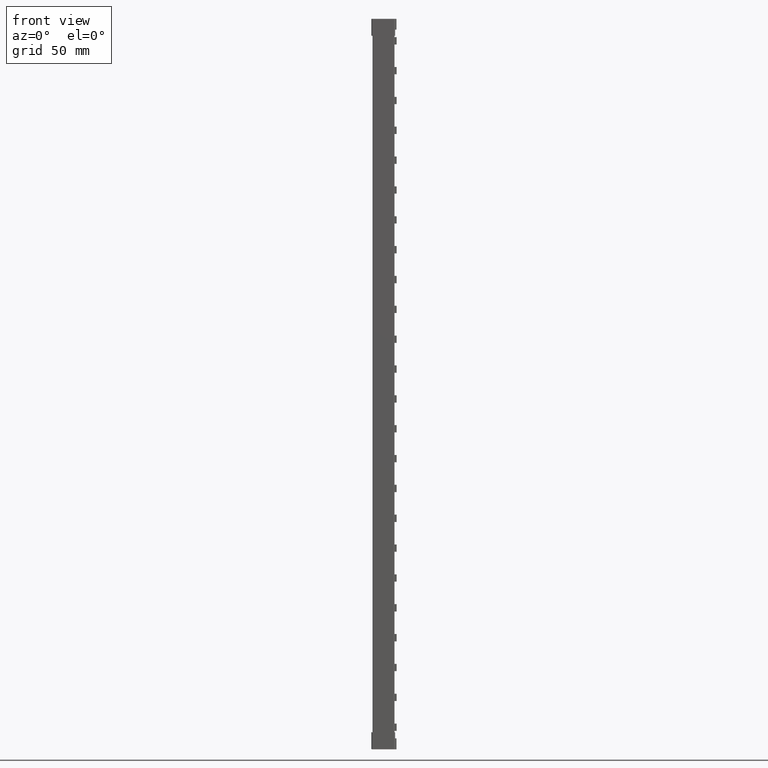
[diagram: clean part render]
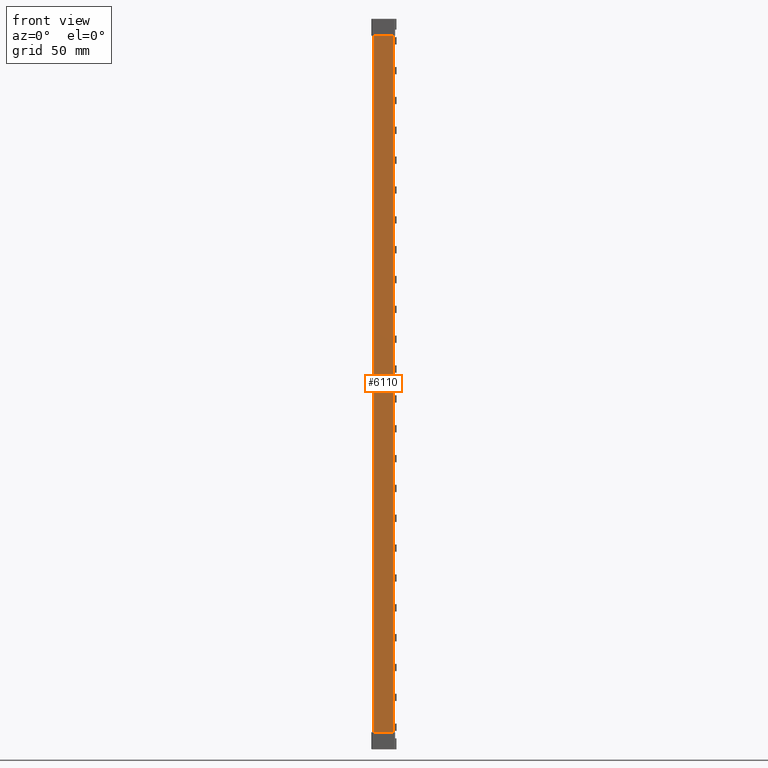
[diagram: same view with one face highlighted and labeled with its STEP entity id]
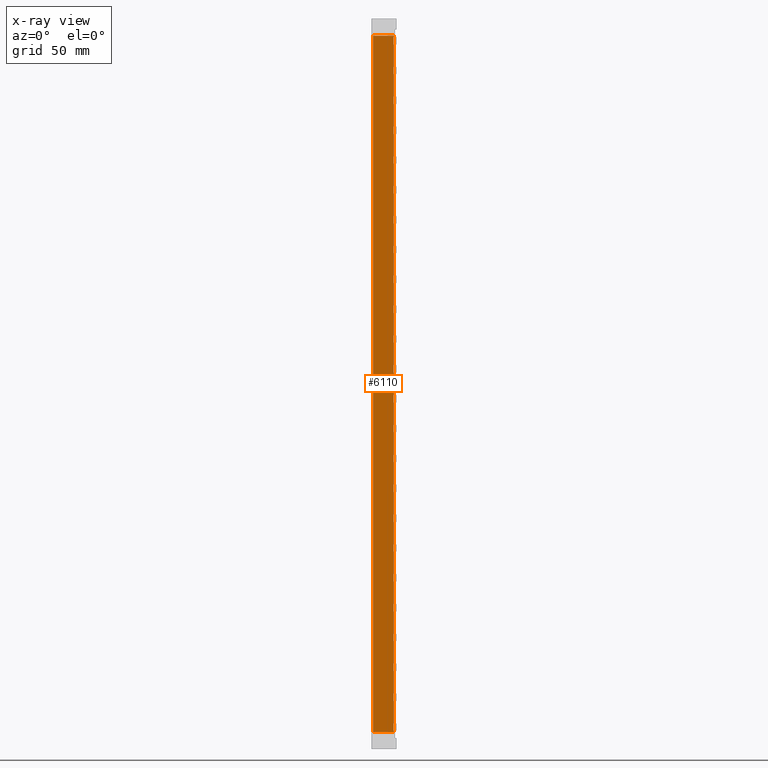
[diagram: x-ray of the same camera — body ghosted, the highlighted face saturated]
A machine part, front view. The second image highlights one B-rep face of the part: STEP entity #6110.
The next image is the same camera in x-ray: the body ghosted, the highlighted face saturated — about 0% of this face is hidden behind the body in this view.
In plain terms, the highlighted planar face has unit normal (-0, 1, 0).
Its self-contained STEP definition (entity closure, byte-faithful):
#2745 = ORIENTED_EDGE ( 'NONE', *, *, #19059, .T. ) ;
#2784 = ORIENTED_EDGE ( 'NONE', *, *, #19070, .F. ) ;
#2809 = ORIENTED_EDGE ( 'NONE', *, *, #19067, .T. ) ;
#2812 = ORIENTED_EDGE ( 'NONE', *, *, #26530, .F. ) ;
#3293 = EDGE_LOOP ( 'NONE', ( #2812, #2809, #2745, #2784 ) ) ;
#3785 = AXIS2_PLACEMENT_3D ( 'NONE', #27610, #27608, #27628 ) ;
#6110 = ADVANCED_FACE ( 'NONE', ( #27594 ), #27615, .F. ) ;
#8633 = LINE ( 'NONE', #8802, #9920 ) ;
#8720 = CARTESIAN_POINT ( 'NONE',  ( -9.184850993604136500E-017, 5.551115123125782700E-014, 219.0000000000000000 ) ) ;
#8722 = DIRECTION ( 'NONE',  ( -0.0000000000000000000, -0.0000000000000000000, -1.000000000000000000 ) ) ;
#8757 = CARTESIAN_POINT ( 'NONE',  ( 11.80192812978781800, 1.341396419667680700E-007, 219.0000000000000000 ) ) ;
#8760 = DIRECTION ( 'NONE',  ( -0.0000000000000000000, -0.0000000000000000000, -1.000000000000000000 ) ) ;
#8765 = LINE ( 'NONE', #8757, #9907 ) ;
#8776 = DIRECTION ( 'NONE',  ( 0.9999999999999998900, 1.136590449795155200E-008, 3.864550688587075800E-026 ) ) ;
#8802 = CARTESIAN_POINT ( 'NONE',  ( -0.4999997060800690000, -5.682891657254884900E-009, -200.9000000000000100 ) ) ;
#8816 = LINE ( 'NONE', #8720, #10888 ) ;
#9423 = CARTESIAN_POINT ( 'NONE',  ( 11.80192812978781800, 1.341396452464796400E-007, -200.9000000000000100 ) ) ;
#9554 = CARTESIAN_POINT ( 'NONE',  ( 0.0000000000000000000, 5.725105502598715000E-014, -200.9000000000000100 ) ) ;
#9907 = VECTOR ( 'NONE', #8760, 1000.000000000000000 ) ;
#9920 = VECTOR ( 'NONE', #8776, 1000.000000000000100 ) ;
#10381 = CARTESIAN_POINT ( 'NONE',  ( 0.0000000000000000000, 5.725105502598715000E-014, 209.9000000000000100 ) ) ;
#10888 = VECTOR ( 'NONE', #8722, 1000.000000000000000 ) ;
#12747 = CARTESIAN_POINT ( 'NONE',  ( 11.80192812978781800, 1.341396452464796400E-007, 209.9000000000000100 ) ) ;
#19059 = EDGE_CURVE ( 'NONE', #35897, #35845, #8633, .T. ) ;
#19067 = EDGE_CURVE ( 'NONE', #35110, #35897, #8816, .T. ) ;
#19070 = EDGE_CURVE ( 'NONE', #35244, #35845, #8765, .T. ) ;
#25695 = CARTESIAN_POINT ( 'NONE',  ( -0.4999997060800690000, -5.682893331100043300E-009, 209.9000000000000100 ) ) ;
#25725 = LINE ( 'NONE', #25695, #30861 ) ;
#25745 = DIRECTION ( 'NONE',  ( 0.9999999999999998900, 1.136590436583420100E-008, -3.864550688586627000E-026 ) ) ;
#26530 = EDGE_CURVE ( 'NONE', #35110, #35244, #25725, .T. ) ;
#27594 = FACE_OUTER_BOUND ( 'NONE', #3293, .T. ) ;
#27608 = DIRECTION ( 'NONE',  ( -1.136590436583420300E-008, 1.000000000000000000, 0.0000000000000000000 ) ) ;
#27610 = CARTESIAN_POINT ( 'NONE',  ( 0.0000000000000000000, 5.551115123125782700E-014, 219.0000000000000000 ) ) ;
#27615 = PLANE ( 'NONE',  #3785 ) ;
#27628 = DIRECTION ( 'NONE',  ( -0.9999999999999998900, -1.136590436583420100E-008, 0.0000000000000000000 ) ) ;
#30861 = VECTOR ( 'NONE', #25745, 1000.000000000000100 ) ;
#35110 = VERTEX_POINT ( 'NONE', #10381 ) ;
#35244 = VERTEX_POINT ( 'NONE', #12747 ) ;
#35845 = VERTEX_POINT ( 'NONE', #9423 ) ;
#35897 = VERTEX_POINT ( 'NONE', #9554 ) ;